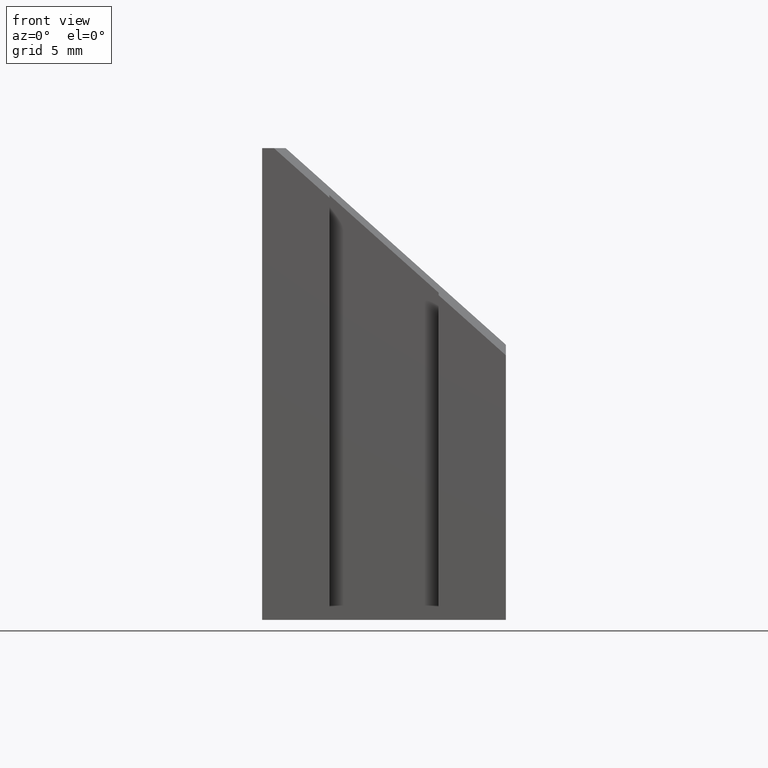
[diagram: clean part render]
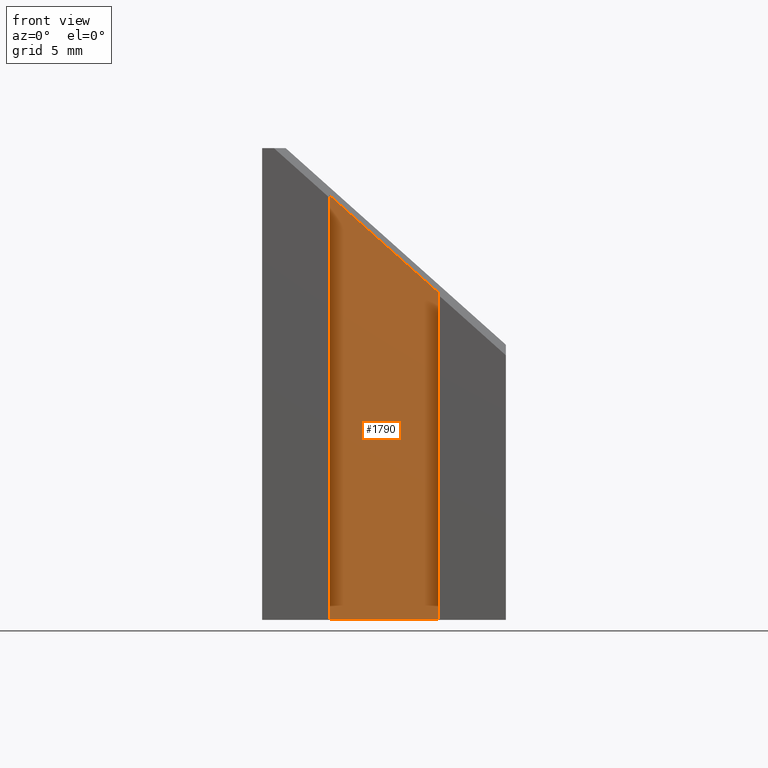
[diagram: same view with one face highlighted and labeled with its STEP entity id]
A machine part, front view. The second image highlights one B-rep face of the part: STEP entity #1790.
In plain terms, the highlighted planar face has unit normal (0, 1, -0).
Its self-contained STEP definition (entity closure, byte-faithful):
#55 = CARTESIAN_POINT ( 'NONE',  ( -1.092506666384452485, -13.50000000000000000, 9.884392533649407397 ) ) ;
#298 = LINE ( 'NONE', #5784, #10918 ) ;
#474 = VECTOR ( 'NONE', #3752, 1000.000000000000000 ) ;
#768 = VERTEX_POINT ( 'NONE', #10132 ) ;
#1408 = ORIENTED_EDGE ( 'NONE', *, *, #1955, .T. ) ;
#1790 = ADVANCED_FACE ( 'NONE', ( #8522 ), #8285, .F. ) ;
#1955 = EDGE_CURVE ( 'NONE', #3345, #8481, #298, .T. ) ;
#2602 = AXIS2_PLACEMENT_3D ( 'NONE', #7288, #5341, #7381 ) ;
#2919 = ORIENTED_EDGE ( 'NONE', *, *, #9495, .F. ) ;
#3345 = VERTEX_POINT ( 'NONE', #13219 ) ;
#3386 = CARTESIAN_POINT ( 'NONE',  ( 3.475000000000003642, -13.50000000000000000, -15.00000000000000000 ) ) ;
#3752 = DIRECTION ( 'NONE',  ( 1.000000000000000000, -0.000000000000000000, -0.000000000000000000 ) ) ;
#4039 = ORIENTED_EDGE ( 'NONE', *, *, #11944, .F. ) ;
#4123 = DIRECTION ( 'NONE',  ( 0.7459376616259146831, 0.000000000000000000, -0.6660157693088524233 ) ) ;
#4849 = DIRECTION ( 'NONE',  ( -0.000000000000000000, -0.000000000000000000, -1.000000000000000000 ) ) ;
#4987 = EDGE_LOOP ( 'NONE', ( #4039, #1408, #8449, #2919 ) ) ;
#5341 = DIRECTION ( 'NONE',  ( 0.000000000000000000, 1.000000000000000000, -0.000000000000000000 ) ) ;
#5784 = CARTESIAN_POINT ( 'NONE',  ( -3.474999999999996536, -13.50000000000000000, 15.00000000000000000 ) ) ;
#6791 = CARTESIAN_POINT ( 'NONE',  ( 3.475000000000003642, -13.50000000000000000, -15.00000000000000000 ) ) ;
#7288 = CARTESIAN_POINT ( 'NONE',  ( 3.475000000000003642, -13.50000000000000000, 15.00000000000000000 ) ) ;
#7330 = VECTOR ( 'NONE', #4123, 1000.000000000000000 ) ;
#7377 = DIRECTION ( 'NONE',  ( -0.000000000000000000, -0.000000000000000000, -1.000000000000000000 ) ) ;
#7381 = DIRECTION ( 'NONE',  ( 0.000000000000000000, 0.000000000000000000, 1.000000000000000000 ) ) ;
#8163 = EDGE_CURVE ( 'NONE', #8481, #10320, #8708, .T. ) ;
#8281 = CARTESIAN_POINT ( 'NONE',  ( 3.475000000000003642, -13.50000000000000000, 15.00000000000000000 ) ) ;
#8285 = PLANE ( 'NONE',  #2602 ) ;
#8449 = ORIENTED_EDGE ( 'NONE', *, *, #8163, .T. ) ;
#8481 = VERTEX_POINT ( 'NONE', #9539 ) ;
#8522 = FACE_OUTER_BOUND ( 'NONE', #4987, .T. ) ;
#8523 = VECTOR ( 'NONE', #7377, 1000.000000000000000 ) ;
#8708 = LINE ( 'NONE', #6791, #474 ) ;
#9495 = EDGE_CURVE ( 'NONE', #768, #10320, #11093, .T. ) ;
#9539 = CARTESIAN_POINT ( 'NONE',  ( -3.474999999999996536, -13.50000000000000000, -15.00000000000000000 ) ) ;
#9918 = LINE ( 'NONE', #55, #7330 ) ;
#10132 = CARTESIAN_POINT ( 'NONE',  ( 3.475000000000003642, -13.50000000000000000, 5.806261581520428372 ) ) ;
#10320 = VERTEX_POINT ( 'NONE', #3386 ) ;
#10918 = VECTOR ( 'NONE', #4849, 1000.000000000000000 ) ;
#11093 = LINE ( 'NONE', #8281, #8523 ) ;
#11944 = EDGE_CURVE ( 'NONE', #3345, #768, #9918, .T. ) ;
#13219 = CARTESIAN_POINT ( 'NONE',  ( -3.474999999999996536, -13.50000000000000000, 12.01161872437757339 ) ) ;